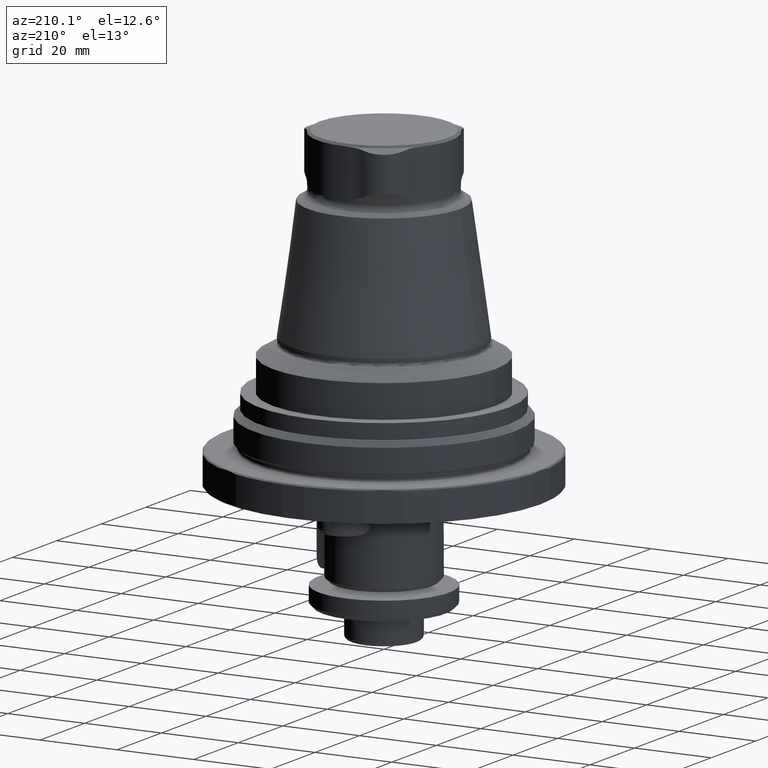
[diagram: clean part render]
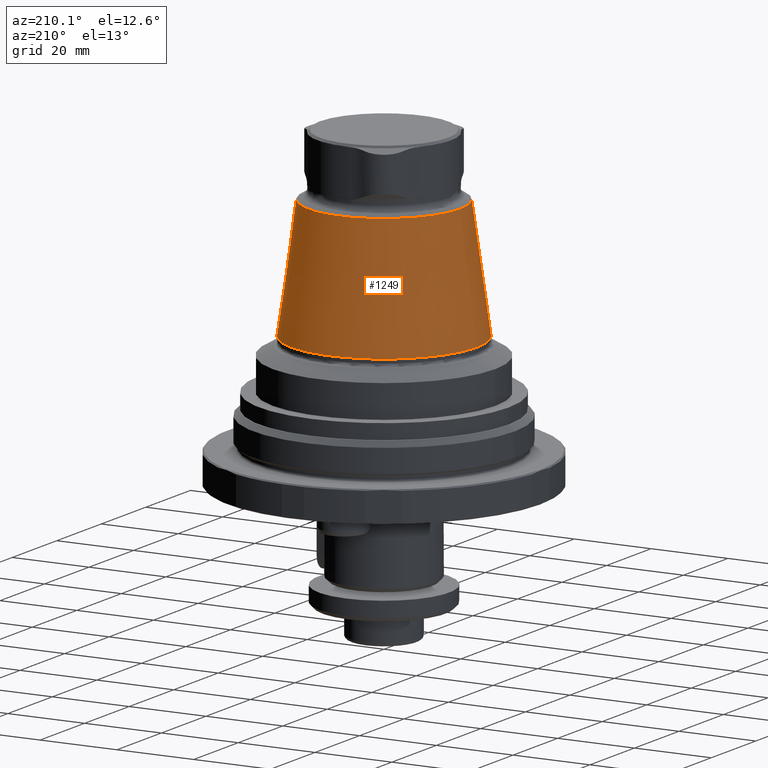
[diagram: same view with one face highlighted and labeled with its STEP entity id]
A machine part, auxiliary view. The second image highlights one B-rep face of the part: STEP entity #1249.
In plain terms, the highlighted conical surface has half-angle 7.95 deg.
Its self-contained STEP definition (entity closure, byte-faithful):
#173=CONICAL_SURFACE('',#1412,24.2110659529869,0.138753675533549);
#545=ORIENTED_EDGE('',*,*,#715,.T.);
#546=ORIENTED_EDGE('',*,*,#716,.F.);
#715=EDGE_CURVE('',#835,#835,#906,.T.);
#716=EDGE_CURVE('',#836,#836,#907,.T.);
#835=VERTEX_POINT('',#2304);
#836=VERTEX_POINT('',#2307);
#906=CIRCLE('',#1411,19.820622068747);
#907=CIRCLE('',#1413,24.2110659529869);
#1024=EDGE_LOOP('',(#545));
#1025=EDGE_LOOP('',(#546));
#1149=FACE_BOUND('',#1024,.T.);
#1150=FACE_BOUND('',#1025,.T.);
#1249=ADVANCED_FACE('',(#1149,#1150),#173,.T.);
#1411=AXIS2_PLACEMENT_3D('',#2303,#1755,#1756);
#1412=AXIS2_PLACEMENT_3D('',#2305,#1757,#1758);
#1413=AXIS2_PLACEMENT_3D('',#2306,#1759,#1760);
#1755=DIRECTION('',(1.22461692971323E-16,-7.49836836562635E-33,-1.));
#1756=DIRECTION('',(-1.,6.12303176911189E-17,-1.22461692971323E-16));
#1757=DIRECTION('',(1.22461692971323E-16,-7.49836836562635E-33,-1.));
#1758=DIRECTION('',(-1.,6.12303176911189E-17,-1.22461692971323E-16));
#1759=DIRECTION('',(1.22461692971323E-16,-7.49836836562635E-33,-1.));
#1760=DIRECTION('',(-1.,6.12303176911189E-17,-1.22461692971323E-16));
#2303=CARTESIAN_POINT('',(1.97634923270405E-15,-1.21012491387068E-31,56.8624545642742));
#2304=CARTESIAN_POINT('',(-19.820622068747,1.21362298610498E-15,56.8624545642742));
#2305=CARTESIAN_POINT('',(5.82638272995627E-15,-3.56751265545271E-31,25.4237784865738));
#2306=CARTESIAN_POINT('',(5.82638272995627E-15,-3.56751265545271E-31,25.4237784865738));
#2307=CARTESIAN_POINT('',(-24.2110659529869,1.48245125994202E-15,25.4237784865737));